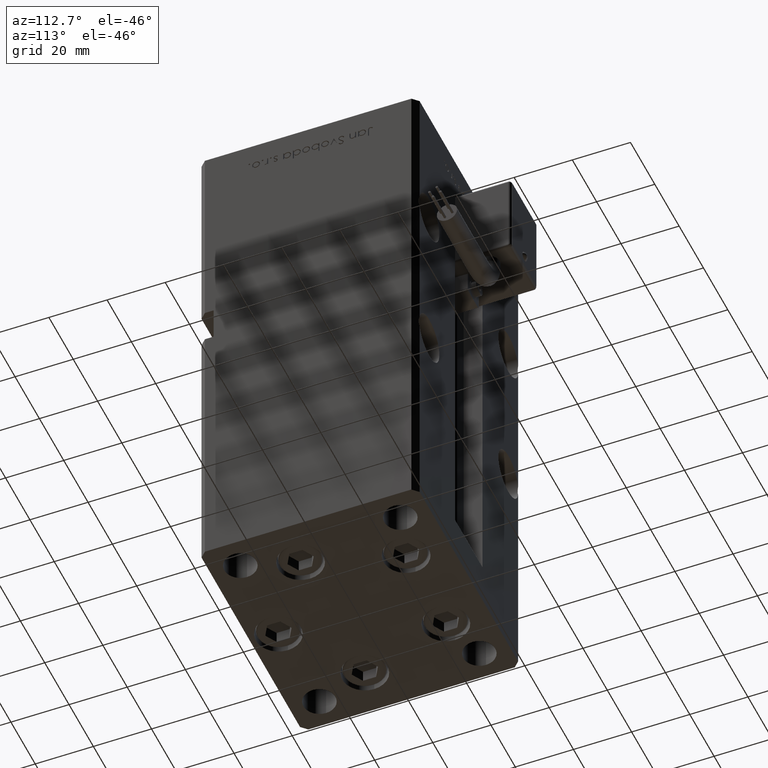
[diagram: clean part render]
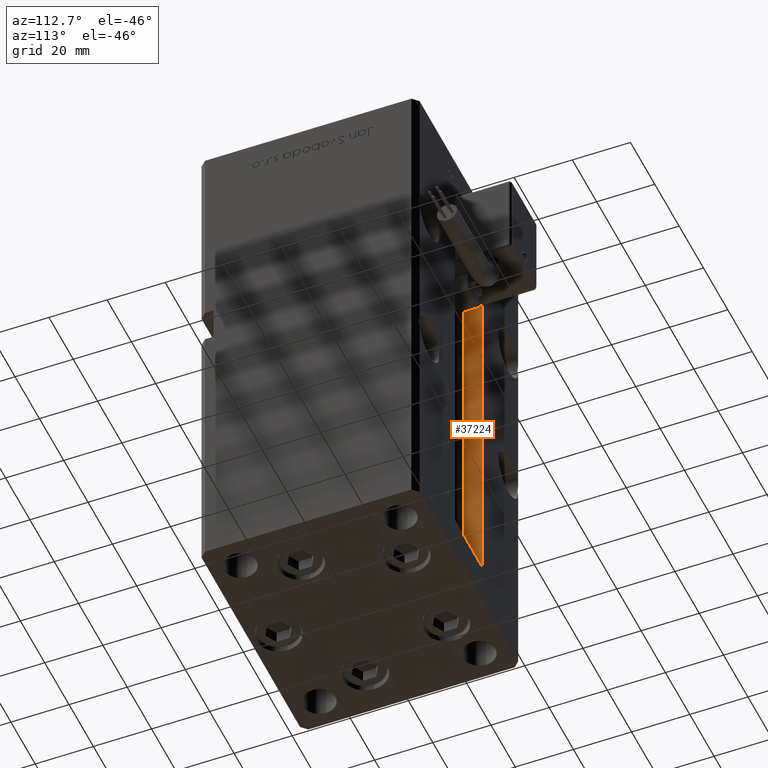
[diagram: same view with one face highlighted and labeled with its STEP entity id]
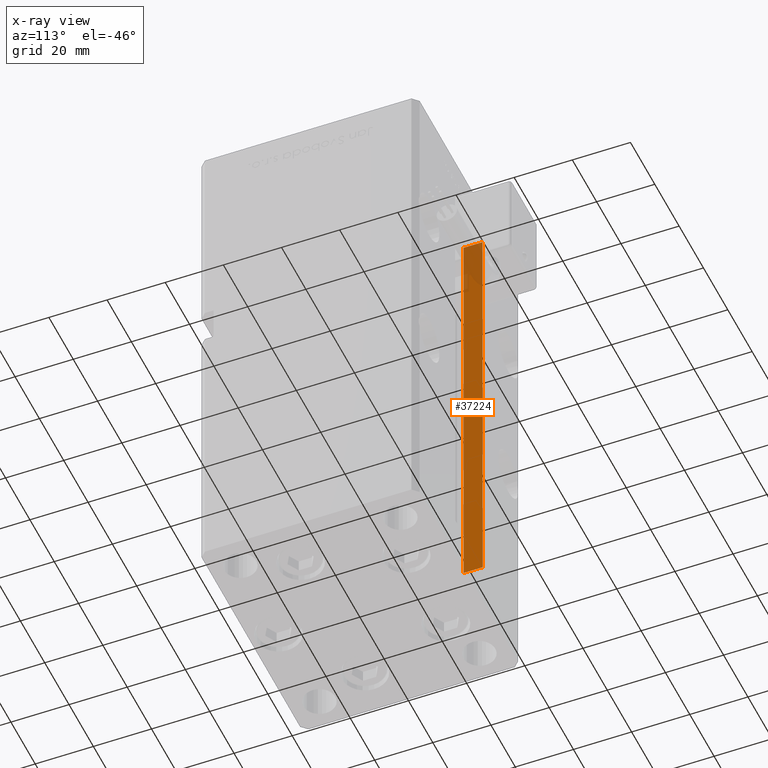
[diagram: x-ray of the same camera — body ghosted, the highlighted face saturated]
A machine part, auxiliary view. The second image highlights one B-rep face of the part: STEP entity #37224.
The next image is the same camera in x-ray: the body ghosted, the highlighted face saturated — about 12% of this face is hidden behind the body in this view.
In plain terms, the highlighted planar face has unit normal (-1, 0, 0).
Its self-contained STEP definition (entity closure, byte-faithful):
#715 = EDGE_CURVE ( 'NONE', #20117, #29063, #9700, .T. ) ;
#3148 = EDGE_CURVE ( 'NONE', #20117, #39278, #35779, .T. ) ;
#4770 = ORIENTED_EDGE ( 'NONE', *, *, #8272, .F. ) ;
#7002 = CARTESIAN_POINT ( 'NONE',  ( -11.24999999999999822, 37.50000000000000000, 148.5000000000000000 ) ) ;
#8067 = EDGE_LOOP ( 'NONE', ( #4770, #11453, #28959, #18404 ) ) ;
#8272 = EDGE_CURVE ( 'NONE', #29063, #54536, #25805, .T. ) ;
#9700 = LINE ( 'NONE', #31553, #39965 ) ;
#10119 = CARTESIAN_POINT ( 'NONE',  ( -11.24999999999999822, 0.000000000000000000, 148.5000000000000000 ) ) ;
#10337 = CARTESIAN_POINT ( 'NONE',  ( -11.24999999999999822, 37.50000000000000000, 0.000000000000000000 ) ) ;
#11453 = ORIENTED_EDGE ( 'NONE', *, *, #715, .F. ) ;
#11954 = EDGE_CURVE ( 'NONE', #54536, #39278, #45046, .T. ) ;
#15712 = FACE_OUTER_BOUND ( 'NONE', #8067, .T. ) ;
#16554 = CARTESIAN_POINT ( 'NONE',  ( -11.24999999999999822, 31.00000000000000000, 148.5000000000000000 ) ) ;
#17008 = CARTESIAN_POINT ( 'NONE',  ( -11.24999999999999822, 31.00000000000000000, 0.000000000000000000 ) ) ;
#18280 = VECTOR ( 'NONE', #53107, 1000.000000000000000 ) ;
#18404 = ORIENTED_EDGE ( 'NONE', *, *, #11954, .F. ) ;
#20117 = VERTEX_POINT ( 'NONE', #10337 ) ;
#23452 = DIRECTION ( 'NONE',  ( 0.000000000000000000, 1.000000000000000000, 0.000000000000000000 ) ) ;
#25805 = LINE ( 'NONE', #17008, #28429 ) ;
#27010 = DIRECTION ( 'NONE',  ( -0.000000000000000000, -1.000000000000000000, -0.000000000000000000 ) ) ;
#28429 = VECTOR ( 'NONE', #34057, 1000.000000000000000 ) ;
#28959 = ORIENTED_EDGE ( 'NONE', *, *, #3148, .T. ) ;
#29063 = VERTEX_POINT ( 'NONE', #29483 ) ;
#29483 = CARTESIAN_POINT ( 'NONE',  ( -11.24999999999999822, 31.00000000000000000, 0.000000000000000000 ) ) ;
#31553 = CARTESIAN_POINT ( 'NONE',  ( -11.24999999999999822, 31.00000000000000000, 0.000000000000000000 ) ) ;
#34057 = DIRECTION ( 'NONE',  ( -0.000000000000000000, -0.000000000000000000, 1.000000000000000000 ) ) ;
#35779 = LINE ( 'NONE', #40034, #18280 ) ;
#37224 = ADVANCED_FACE ( 'NONE', ( #15712 ), #42118, .F. ) ;
#37858 = DIRECTION ( 'NONE',  ( -1.000000000000000000, 0.000000000000000000, 0.000000000000000000 ) ) ;
#38148 = CARTESIAN_POINT ( 'NONE',  ( -11.24999999999999822, 31.00000000000000000, 0.000000000000000000 ) ) ;
#39278 = VERTEX_POINT ( 'NONE', #7002 ) ;
#39965 = VECTOR ( 'NONE', #27010, 1000.000000000000000 ) ;
#40034 = CARTESIAN_POINT ( 'NONE',  ( -11.24999999999999822, 37.50000000000000000, 0.000000000000000000 ) ) ;
#42118 = PLANE ( 'NONE',  #54715 ) ;
#45046 = LINE ( 'NONE', #10119, #55670 ) ;
#51218 = DIRECTION ( 'NONE',  ( 0.000000000000000000, 0.000000000000000000, 1.000000000000000000 ) ) ;
#53107 = DIRECTION ( 'NONE',  ( -0.000000000000000000, -0.000000000000000000, 1.000000000000000000 ) ) ;
#54536 = VERTEX_POINT ( 'NONE', #16554 ) ;
#54715 = AXIS2_PLACEMENT_3D ( 'NONE', #38148, #37858, #51218 ) ;
#55670 = VECTOR ( 'NONE', #23452, 1000.000000000000000 ) ;